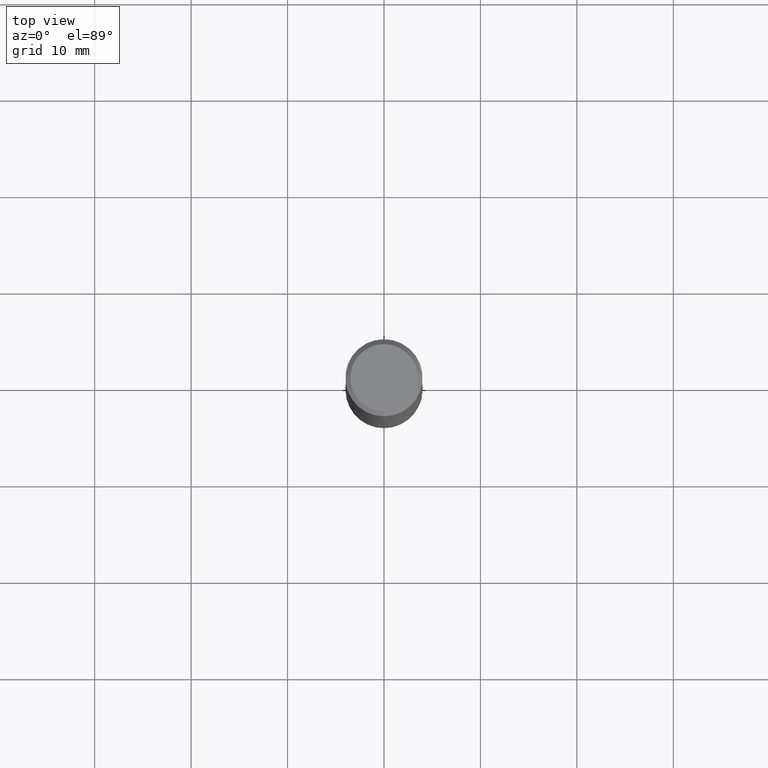
[diagram: clean part render]
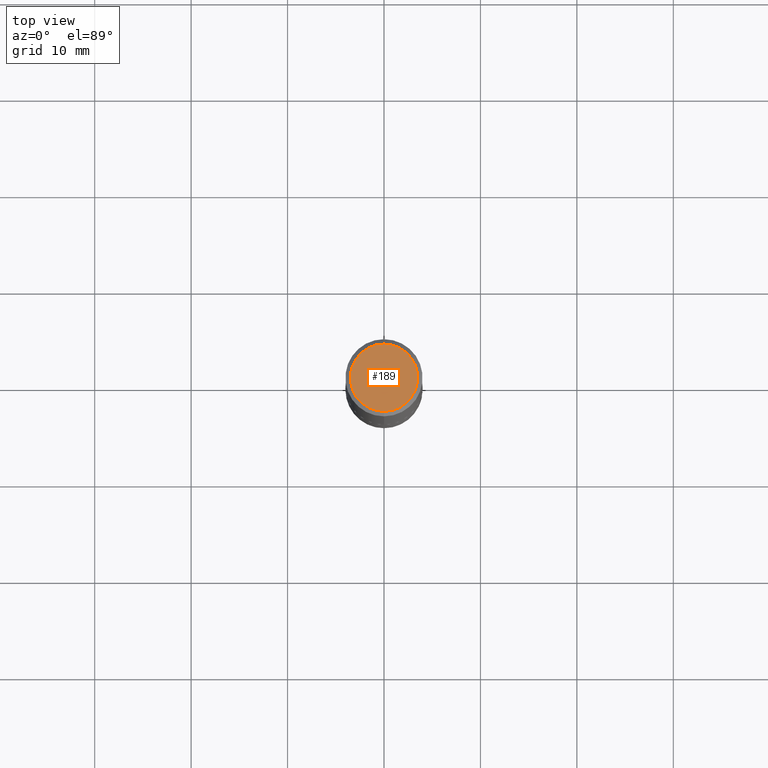
[diagram: same view with one face highlighted and labeled with its STEP entity id]
A machine part, top view. The second image highlights one B-rep face of the part: STEP entity #189.
In plain terms, the highlighted planar face has unit normal (0, -0, -1).
Its self-contained STEP definition (entity closure, byte-faithful):
#28 = VERTEX_POINT ( 'NONE', #291 ) ;
#46 = CARTESIAN_POINT ( 'NONE',  ( 9.601573681818604894E-16, 0.1374999999999998723, -4.196168007175302652E-16 ) ) ;
#48 = CARTESIAN_POINT ( 'NONE',  ( -2.896845160306655403E-45, 4.111818427476478730E-31, 1.181129326988194735E-16 ) ) ;
#71 = PLANE ( 'NONE',  #318 ) ;
#91 = AXIS2_PLACEMENT_3D ( 'NONE', #48, #218, #335 ) ;
#110 = DIRECTION ( 'NONE',  ( -2.452606242276133797E-29, 3.481260124123203654E-15, 1.000000000000000000 ) ) ;
#135 = CARTESIAN_POINT ( 'NONE',  ( -2.896845160306655403E-45, 4.111818427476478730E-31, 1.181129326988194735E-16 ) ) ;
#157 = EDGE_LOOP ( 'NONE', ( #340, #382 ) ) ;
#183 = DIRECTION ( 'NONE',  ( 2.452606242276133237E-29, -3.481260124123204048E-15, -1.000000000000000000 ) ) ;
#189 = ADVANCED_FACE ( 'NONE', ( #392 ), #71, .F. ) ;
#205 = CARTESIAN_POINT ( 'NONE',  ( 1.029986994958723788E-15, 0.1374999999999998723, -3.605603343681205655E-16 ) ) ;
#218 = DIRECTION ( 'NONE',  ( -2.452606242276133797E-29, 3.481260124123203654E-15, 1.000000000000000000 ) ) ;
#219 = VERTEX_POINT ( 'NONE', #205 ) ;
#233 = DIRECTION ( 'NONE',  ( 6.982962677686265922E-15, 1.000000000000000000, -3.481260124123204048E-15 ) ) ;
#261 = EDGE_CURVE ( 'NONE', #28, #219, #311, .T. ) ;
#291 = CARTESIAN_POINT ( 'NONE',  ( -1.011923454671300053E-15, -0.1374999999999998723, 5.967861997657594631E-16 ) ) ;
#304 = CIRCLE ( 'NONE', #353, 0.1374999999999998723 ) ;
#311 = CIRCLE ( 'NONE', #91, 0.1374999999999998723 ) ;
#318 = AXIS2_PLACEMENT_3D ( 'NONE', #46, #183, #233 ) ;
#335 = DIRECTION ( 'NONE',  ( -6.982962677686264344E-15, -1.000000000000000000, 3.481260124123203654E-15 ) ) ;
#338 = EDGE_CURVE ( 'NONE', #219, #28, #304, .T. ) ;
#340 = ORIENTED_EDGE ( 'NONE', *, *, #338, .T. ) ;
#353 = AXIS2_PLACEMENT_3D ( 'NONE', #135, #110, #394 ) ;
#382 = ORIENTED_EDGE ( 'NONE', *, *, #261, .T. ) ;
#392 = FACE_OUTER_BOUND ( 'NONE', #157, .T. ) ;
#394 = DIRECTION ( 'NONE',  ( -6.982962677686264344E-15, -1.000000000000000000, 3.481260124123203654E-15 ) ) ;